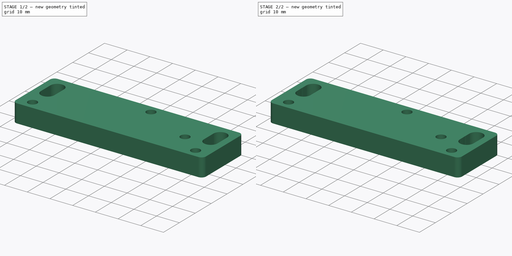
[diagram: build sequence overview — one tinted view per stage of 2, left to right]
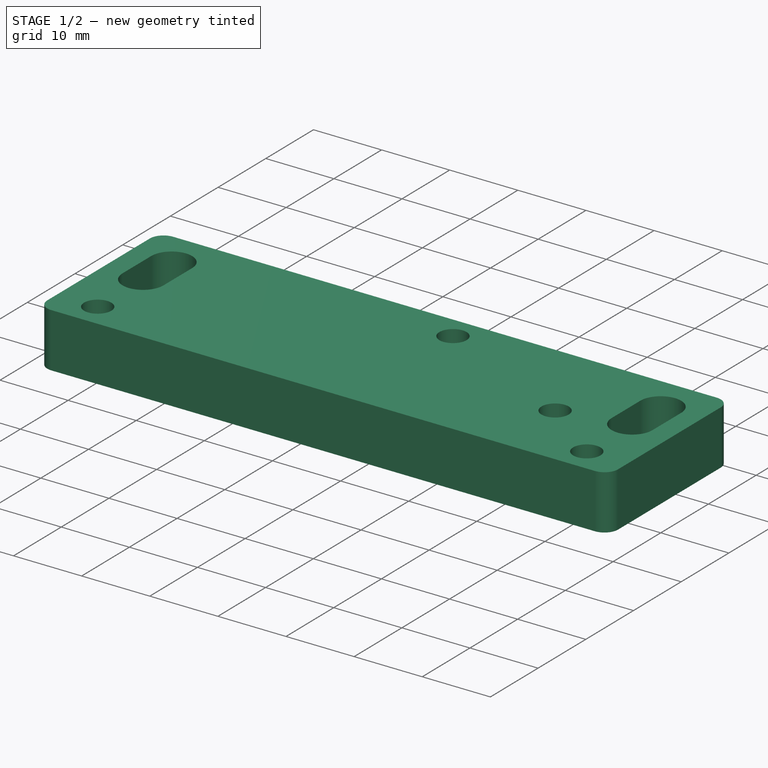
[diagram: stage 1 of 2 — iso view after this stage's code; geometry added in this stage tinted green]
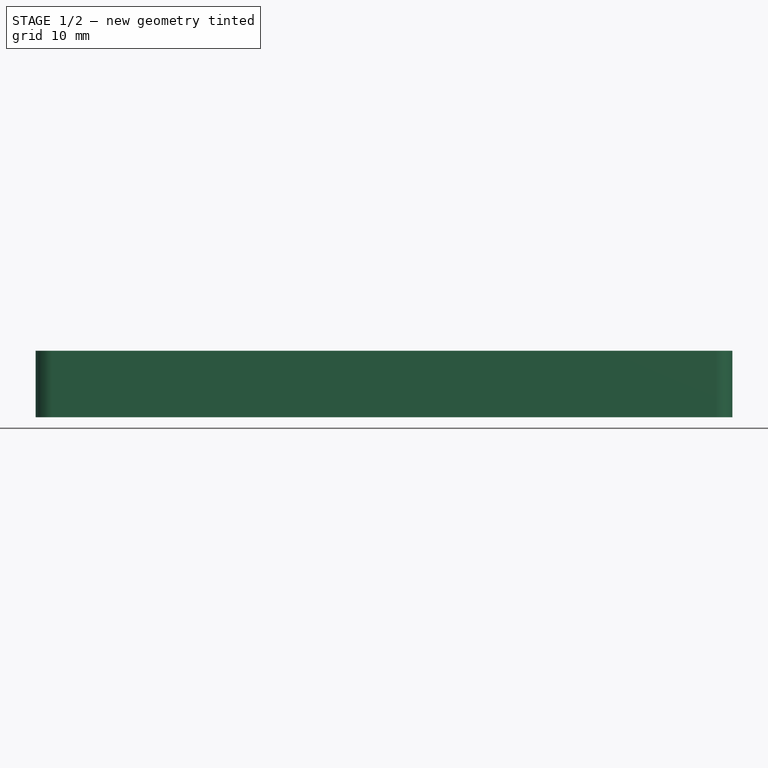
[diagram: stage 1 of 2 — front view after this stage's code; geometry added in this stage tinted green]
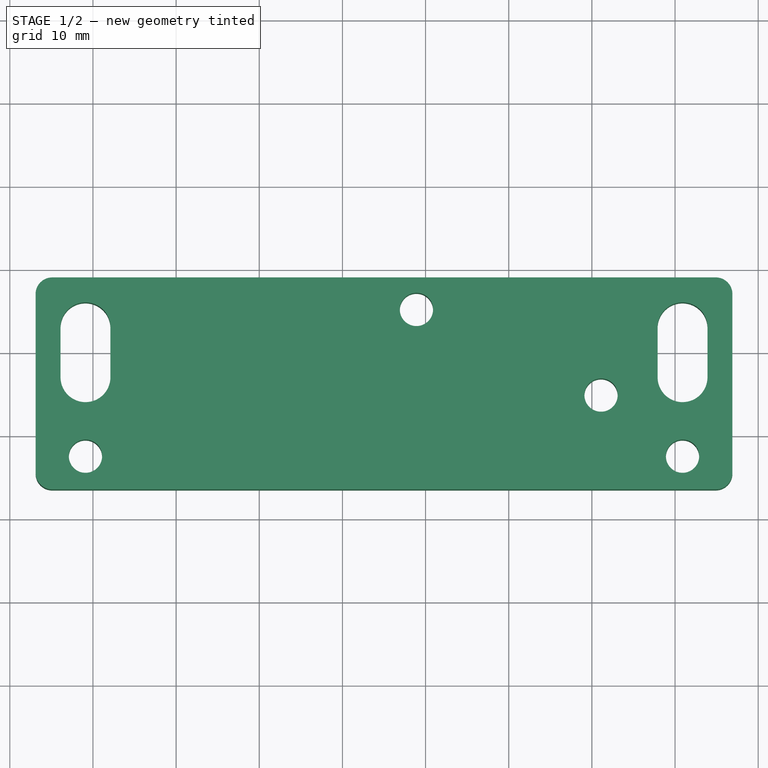
[diagram: stage 1 of 2 — top view after this stage's code; geometry added in this stage tinted green]
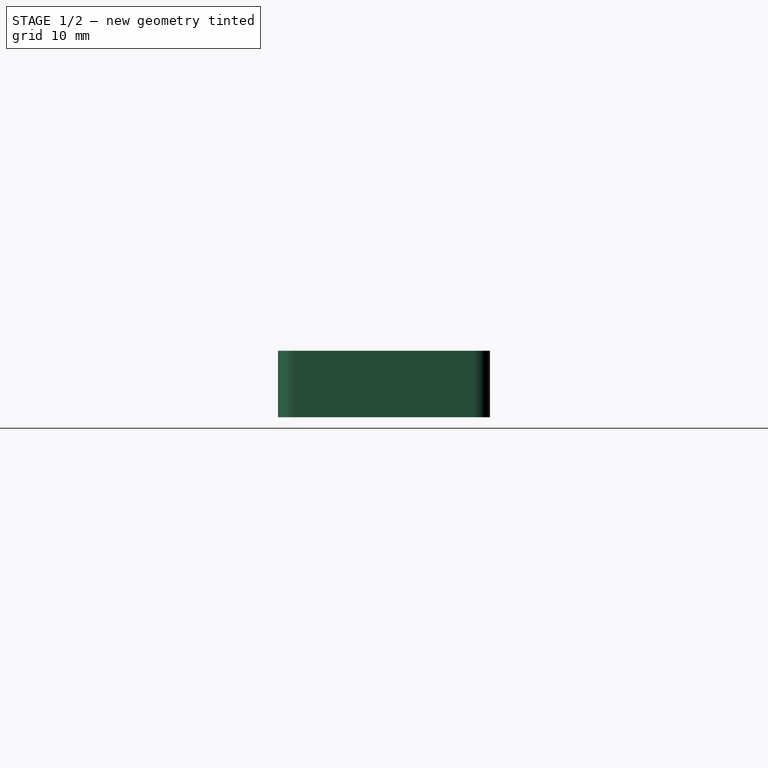
[diagram: stage 1 of 2 — right view after this stage's code; geometry added in this stage tinted green]
FCSTD DOCUMENT  (FreeCAD 0.19R24366 (Git))
Label: Interlock microswitch bracket
License: All rights reserved
LicenseURL: http://en.wikipedia.org/wiki/All_rights_reserved
objects: Sketcher::SketchObject×2, PartDesign::Pad×1, PartDesign::Pocket×1, PartDesign::Body×1
note: 7 computed .brp shape members not serialized (recipe doc carries the construction recipe); baked Part::Feature solids carry a one-line shape summary decoded from their .brp

FEATURE [Sketcher::SketchObject] Sketch  label="Plate layout sketch"
  FullyConstrained = true
  MapMode = 5
  Support = -> [XY_Plane]
  sketch-geometry (42):
    g0: LineSegment StartX=-54.9 StartY=9 StartZ=0 EndX=24.9 EndY=9 EndZ=0
    g1: LineSegment StartX=-56.9 StartY=7 StartZ=0 EndX=-56.9 EndY=-14.5 EndZ=0
    g2: LineSegment StartX=26.9 StartY=7 StartZ=0 EndX=26.9 EndY=-14.5 EndZ=0
    g3: LineSegment StartX=-54.9 StartY=-16.5 StartZ=0 EndX=24.9 EndY=-16.5 EndZ=0
    g4: ArcOfCircle CenterX=-54.9 CenterY=7 CenterZ=0 NormalX=0 NormalY=0 NormalZ=1 AngleXU=0 Radius=2 StartAngle=1.5708 EndAngle=3.14159
    g5: ArcOfCircle CenterX=-54.9 CenterY=-14.5 CenterZ=0 NormalX=0 NormalY=0 NormalZ=1 AngleXU=0 Radius=2 StartAngle=3.14159 EndAngle=4.71239
    g6: ArcOfCircle CenterX=24.9 CenterY=7 CenterZ=0 NormalX=0 NormalY=0 NormalZ=1 AngleXU=0 Radius=2 StartAngle=0 EndAngle=1.5708
    g7: ArcOfCircle CenterX=24.9 CenterY=-14.5 CenterZ=0 NormalX=0 NormalY=0 NormalZ=1 AngleXU=0 Radius=2 StartAngle=4.71239 EndAngle=6.28319
    g8: Circle CenterX=-11.1 CenterY=5.15 CenterZ=0 NormalX=0 NormalY=0 NormalZ=1 AngleXU=0 Radius=2
    g9: Circle CenterX=11.1 CenterY=-5.15 CenterZ=0 NormalX=0 NormalY=0 NormalZ=1 AngleXU=0 Radius=2
    g10: LineSegment StartX=-13.1 StartY=5.15 StartZ=0 EndX=-9.1 EndY=5.15 EndZ=0
    g11: LineSegment StartX=-11.1 StartY=7.15 StartZ=0 EndX=-11.1 EndY=3.15 EndZ=0
    g12: LineSegment StartX=11.1 StartY=-3.15 StartZ=0 EndX=11.1 EndY=-7.15 EndZ=0
    g13: LineSegment StartX=9.1 StartY=-5.15 StartZ=0 EndX=13.1 EndY=-5.15 EndZ=0
    g14: LineSegment StartX=-11.1 StartY=7.95 StartZ=0 EndX=11.1 EndY=7.95 EndZ=0
    g15: LineSegment StartX=13.9 StartY=5.15 StartZ=0 EndX=13.9 EndY=-5.15 EndZ=0
    g16: LineSegment StartX=-13.9 StartY=5.15 StartZ=0 EndX=-13.9 EndY=-5.15 EndZ=0
    g17: LineSegment StartX=-11.1 StartY=-7.95 StartZ=0 EndX=11.1 EndY=-7.95 EndZ=0
    g18: ArcOfCircle CenterX=-11.1 CenterY=5.15 CenterZ=0 NormalX=0 NormalY=0 NormalZ=1 AngleXU=0 Radius=2.8 StartAngle=1.5708 EndAngle=3.14159
    g19: ArcOfCircle CenterX=-11.1 CenterY=-5.15 CenterZ=0 NormalX=0 NormalY=0 NormalZ=1 AngleXU=0 Radius=2.8 StartAngle=3.14159 EndAngle=4.71239
    g20: ArcOfCircle CenterX=11.1 CenterY=-5.15 CenterZ=0 NormalX=0 NormalY=0 NormalZ=1 AngleXU=0 Radius=2.8 StartAngle=4.71239 EndAngle=6.28319
    g21: ArcOfCircle CenterX=11.1 CenterY=5.15 CenterZ=0 NormalX=0 NormalY=0 NormalZ=1 AngleXU=0 Radius=2.8 StartAngle=0 EndAngle=1.5708
    g22: Circle CenterX=-50.9 CenterY=-12.5 CenterZ=0 NormalX=0 NormalY=0 NormalZ=1 AngleXU=0 Radius=2
    g23: Circle CenterX=20.9 CenterY=-12.5 CenterZ=0 NormalX=0 NormalY=0 NormalZ=1 AngleXU=0 Radius=2
    g24: LineSegment StartX=-50.9 StartY=-10.5 StartZ=0 EndX=-50.9 EndY=-14.5 EndZ=0
    g25: LineSegment StartX=-52.9 StartY=-12.5 StartZ=0 EndX=-48.9 EndY=-12.5 EndZ=0
    g26: LineSegment StartX=18.9 StartY=-12.5 StartZ=0 EndX=22.9 EndY=-12.5 EndZ=0
    g27: LineSegment StartX=20.9 StartY=-10.5 StartZ=0 EndX=20.9 EndY=-14.5 EndZ=0
    g28: LineSegment StartX=-50.9 StartY=-12.5 StartZ=0 EndX=-50.9 EndY=0 EndZ=0
    g29: LineSegment StartX=20.9 StartY=0 StartZ=0 EndX=20.9 EndY=-12.5 EndZ=0
    g30: Circle CenterX=-50.9 CenterY=0 CenterZ=0 NormalX=0 NormalY=0 NormalZ=1 AngleXU=0 Radius=5
    g31: Circle CenterX=20.9 CenterY=0 CenterZ=0 NormalX=0 NormalY=0 NormalZ=1 AngleXU=0 Radius=5
    g32: GeomPoint X=-45.9 Y=0 Z=0
    g33: GeomPoint X=15.9 Y=0 Z=0
    g34: ArcOfCircle CenterX=-50.9 CenterY=-3 CenterZ=0 NormalX=0 NormalY=0 NormalZ=1 AngleXU=0 Radius=3 StartAngle=3.14159 EndAngle=6.28319
    g35: ArcOfCircle CenterX=-50.9 CenterY=3 CenterZ=0 NormalX=0 NormalY=0 NormalZ=1 AngleXU=0 Radius=3 StartAngle=0 EndAngle=3.14159
    g36: LineSegment StartX=-47.9 StartY=-3 StartZ=0 EndX=-47.9 EndY=3 EndZ=0
    g37: LineSegment StartX=-53.9 StartY=-3 StartZ=0 EndX=-53.9 EndY=3 EndZ=0
    g38: ArcOfCircle CenterX=20.9 CenterY=-3 CenterZ=0 NormalX=0 NormalY=0 NormalZ=1 AngleXU=0 Radius=3 StartAngle=3.14159 EndAngle=6.28319
    g39: ArcOfCircle CenterX=20.9 CenterY=3 CenterZ=0 NormalX=0 NormalY=0 NormalZ=1 AngleXU=0 Radius=3 StartAngle=0 EndAngle=3.14159
    g40: LineSegment StartX=23.9 StartY=-3 StartZ=0 EndX=23.9 EndY=3 EndZ=0
    g41: LineSegment StartX=17.9 StartY=-3 StartZ=0 EndX=17.9 EndY=3 EndZ=0
  constraints (115):
    c: Horizontal(g0)
    c: Vertical(g1)
    c: Horizontal(g3)
    c: Tangent(g0,g4) = 1.5708
    c: Tangent(g1,g4) = -1.5708
    c: Tangent(g1,g5) = -1.5708
    c: Tangent(g3,g5) = -1.5708
    c: Tangent(g0,g6) = 1.5708
    c: Tangent(g2,g6) = 1.5708
    c: Tangent(g2,g7) = 1.5708
    c: Tangent(g3,g7) = -1.5708
    c: Equal(g4,g5)
    c: Equal(g5,g6)
    c: Equal(g6,g7)
    c: DistanceX(g8,g9) = 22.2
    c: Equal(g9,g8)
    c: Radius(g9) = 2
    c: PointOnObject(g10,g8)
    c: PointOnObject(g10,g8)
    c: Horizontal(g10)
    c: PointOnObject(g11,g8)
    c: PointOnObject(g11,g8)
    c: Vertical(g11)
    c: PointOnObject(g12,g9)
    c: PointOnObject(g12,g9)
    c: Vertical(g12)
    c: PointOnObject(g13,g9)
    c: PointOnObject(g13,g9)
    c: Horizontal(g13)
    c: PointOnObject(g9,g13)
    c: PointOnObject(g9,g12)
    c: PointOnObject(g8,g10)
    c: PointOnObject(g8,g11)
    c: Horizontal(g14)
    c: Vertical(g15)
    c: Vertical(g16)
    c: Horizontal(g17)
    c: Radius(g4) = 2
    c: Tangent(g14,g18) = 1.5708
    c: Tangent(g16,g18) = -1.5708
    c: Tangent(g16,g19) = -1.5708
    c: Tangent(g17,g19) = -1.5708
    c: Tangent(g15,g20) = 1.5708
    c: Tangent(g17,g20) = -1.5708
    c: Tangent(g14,g21) = 1.5708
    c: Tangent(g15,g21) = 1.5708
    c: Equal(g21,g20)
    c: Radius(g18) = 2.8
    c: DistanceX(g9,g15) = 2.8
    c: DistanceX(g16,g15) = 27.8
    c: Symmetric(g14,g17,g-1)
    c: DistanceY(g14,g0) = 1.05
    c: Symmetric(g16,g15,g-2)
    c: DistanceY(g-1,g0) = 9
    c: DistanceY(g3,g-1) = 16.5
    c: Vertical(g2)
    c: PointOnObject(g24,g22)
    c: PointOnObject(g24,g22)
    c: Vertical(g24)
    c: PointOnObject(g25,g22)
    c: PointOnObject(g25,g22)
    c: Horizontal(g25)
    c: PointOnObject(g26,g23)
    c: PointOnObject(g26,g23)
    c: Horizontal(g26)
    c: PointOnObject(g27,g23)
    c: PointOnObject(g27,g23)
    c: Vertical(g27)
    c: PointOnObject(g23,g27)
    c: PointOnObject(g23,g26)
    c: PointOnObject(g22,g24)
    c: PointOnObject(g22,g25)
    c: Equal(g9,g22)
    c: Equal(g22,g23)
    c: Coincident(g28,g22)
    c: Coincident(g29,g23)
    c: Vertical(g29)
    c: Vertical(g28)
    c: Equal(g29,g28)
    c: Equal(g30,g31)
    c: Radius(g30) = 5
    c: DistanceY(g29,g29) = 12.5
    c: DistanceY(g8,g14) = 2.8
    c: DistanceY(g9,g8) = 10.3
    c: PointOnObject(g32,g-1)
    c: PointOnObject(g32,g30)
    c: DistanceX(g32,g16) = 32
    c: PointOnObject(g33,g31)
    c: PointOnObject(g33,g-1)
    c: DistanceX(g15,g33) = 2
    c: DistanceX(g1,g28) = 6
    c: Coincident(g28,g30)
    c: PointOnObject(g28,g-1)
    c: Coincident(g29,g31)
    c: PointOnObject(g29,g-1)
    c: DistanceX(g29,g2) = 6
    c: Tangent(g34,g37) = 1.5708
    c: Tangent(g34,g36) = -1.5708
    c: Tangent(g36,g35) = -1.5708
    c: Tangent(g37,g35) = 1.5708
    c: Vertical(g36)
    c: PointOnObject(g34,g28)
    c: Tangent(g38,g41) = 1.5708
    c: Tangent(g38,g40) = -1.5708
    c: Tangent(g40,g39) = -1.5708
    c: Tangent(g41,g39) = 1.5708
    c: Vertical(g40)
    c: PointOnObject(g38,g29)
    c: Equal(g35,g39)
    c: Radius(g35) = 3
    c: Equal(g37,g41)
    c: DistanceY(g37,g37) = 6
    c: Symmetric(g34,g35,g-1)
    c: Symmetric(g38,g39,g-1)
    c: DistanceY(g17,g14) = 15.9
FEATURE [PartDesign::Pad] Pad  label="Plate thickness"
  Direction = (1,1,1)
  Length = 8
  Length2 = 100
  Profile = -> Sketch
  Type = 0
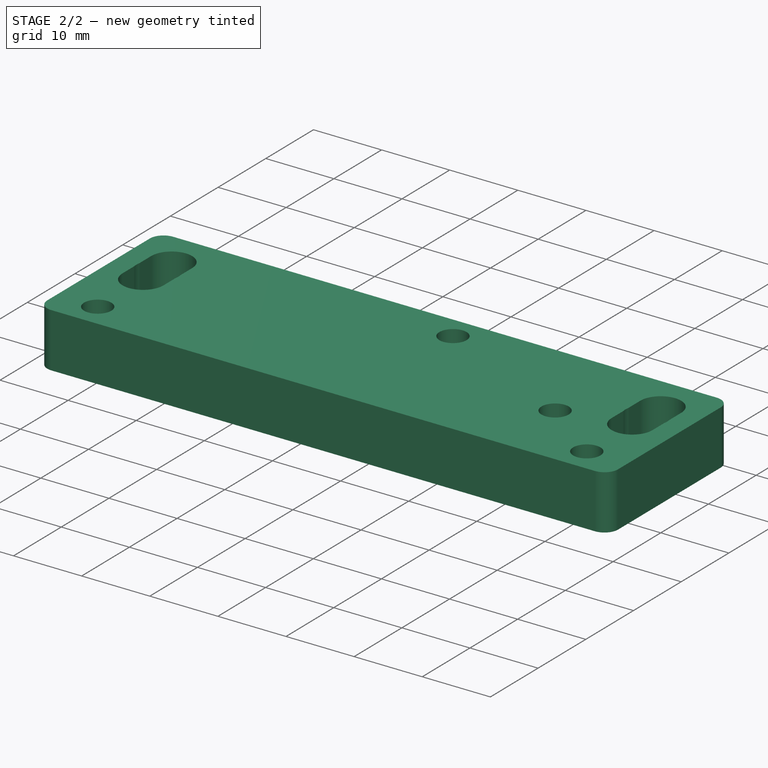
[diagram: stage 2 of 2 — iso view after this stage's code; geometry added in this stage tinted green]
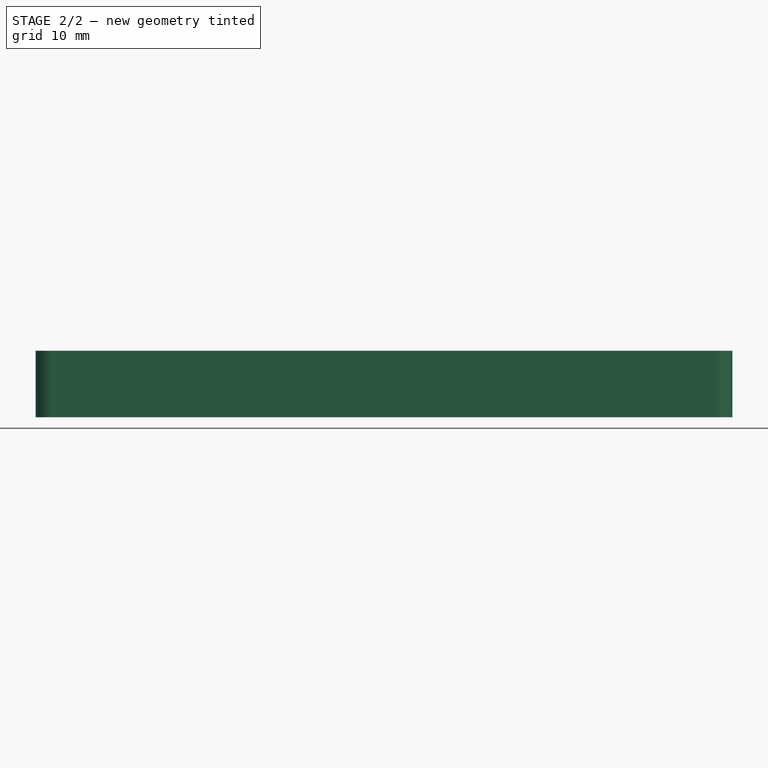
[diagram: stage 2 of 2 — front view after this stage's code; geometry added in this stage tinted green]
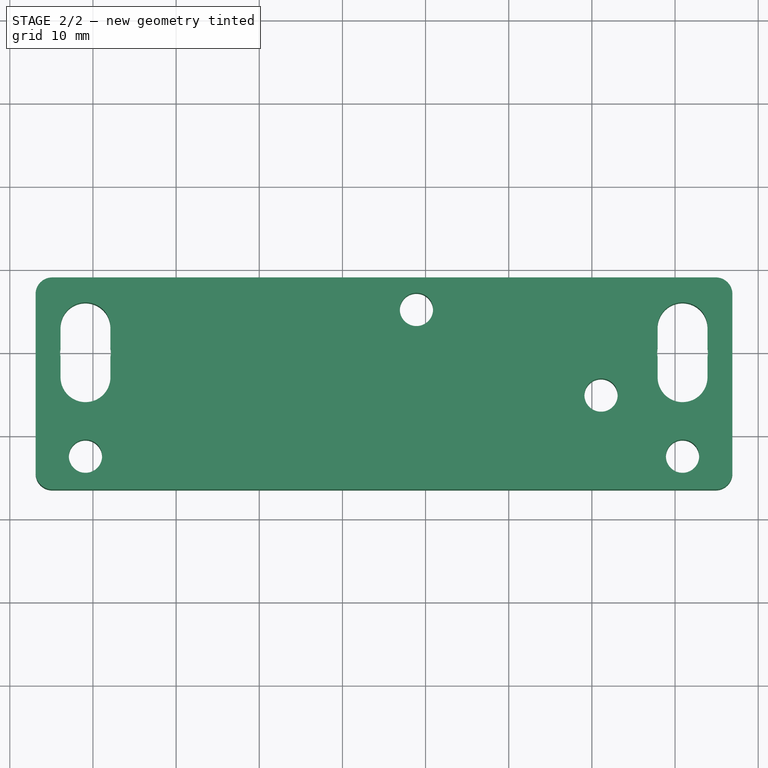
[diagram: stage 2 of 2 — top view after this stage's code; geometry added in this stage tinted green]
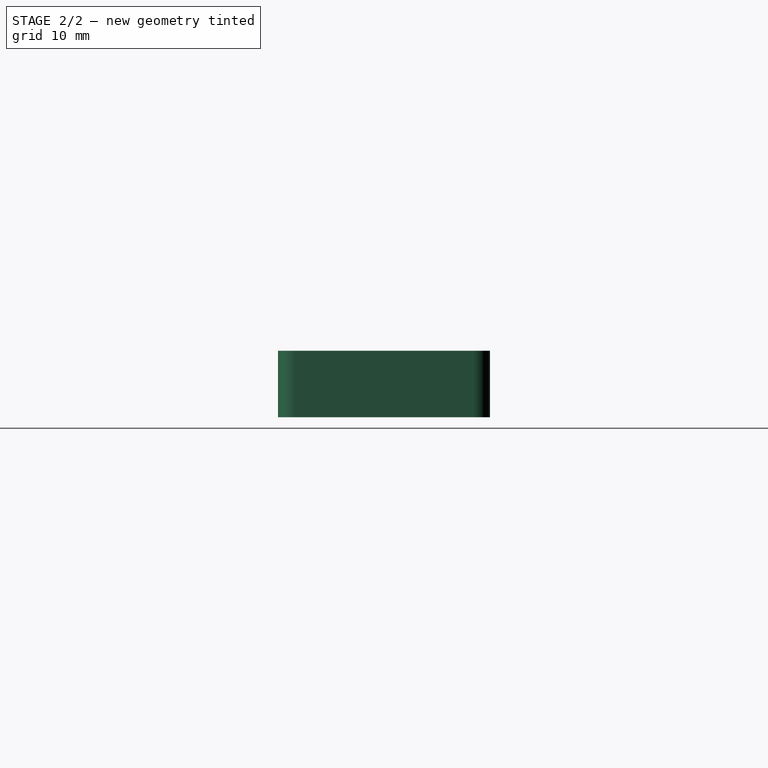
[diagram: stage 2 of 2 — right view after this stage's code; geometry added in this stage tinted green]
FEATURE [Sketcher::SketchObject] Sketch001  label="3D Allignment mark sketch"
  ExternalGeometry = -> [Pad]
  FullyConstrained = true
  MapMode = 5
  Support = -> [XY_Plane]
  sketch-geometry (4):
    g0: LineSegment StartX=-50.9 StartY=3 StartZ=0 EndX=-50.9 EndY=-3 EndZ=0
    g1: LineSegment StartX=20.9 StartY=3 StartZ=0 EndX=20.9 EndY=-3 EndZ=0
    g2: Circle CenterX=-50.9 CenterY=1e-16 CenterZ=0 NormalX=0 NormalY=0 NormalZ=1 AngleXU=0 Radius=3.05
    g3: Circle CenterX=20.9 CenterY=1e-16 CenterZ=0 NormalX=0 NormalY=0 NormalZ=1 AngleXU=0 Radius=3.05
  constraints (8):
    c: Coincident(g0,g-3)
    c: Coincident(g0,g-4)
    c: Coincident(g1,g-5)
    c: Coincident(g1,g-6)
    c: Symmetric(g1,g1,g3)
    c: Symmetric(g0,g0,g2)
    c: Equal(g3,g2)
    c: Diameter(g2) = 6.1
FEATURE [PartDesign::Pocket] Pocket  label="3D Allignment mark"
  BaseFeature = -> Pad
  Length = 5
  Length2 = 100
  Midplane = true
  Profile = -> Sketch001
  Type = 1
FEATURE [PartDesign::Body] Body
  Group = -> [Sketch,Pad,Sketch001,Pocket]
  Origin = -> Origin
  Tip = -> Pocket
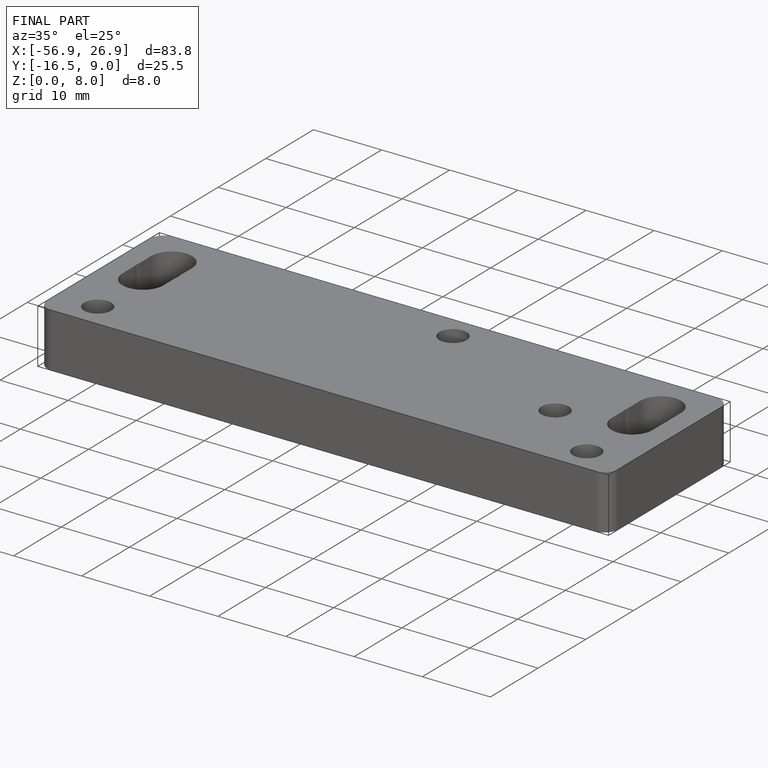
[diagram: finished part — iso view with bounding-box wireframe]
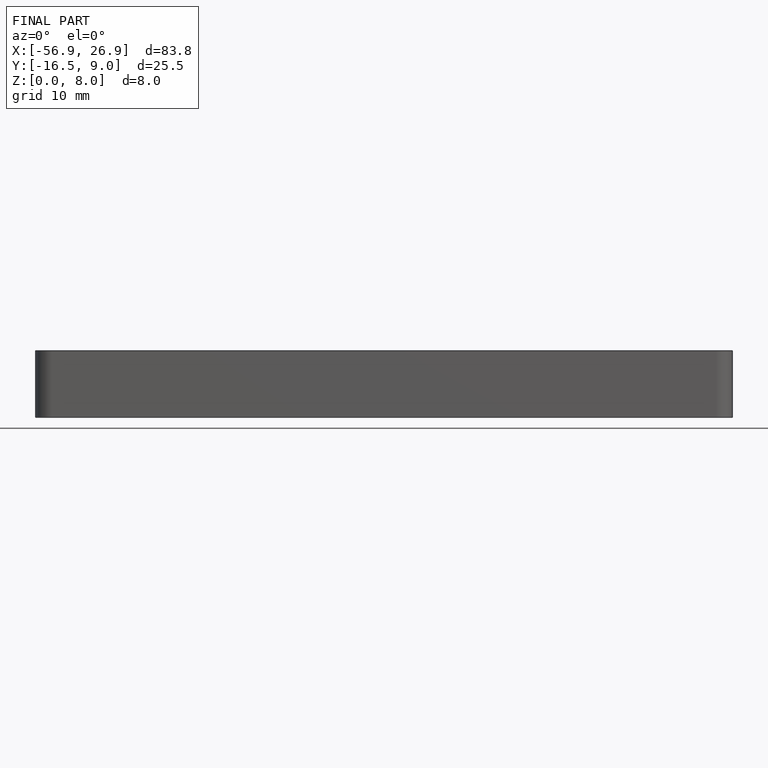
[diagram: finished part — front view with bounding-box wireframe]
